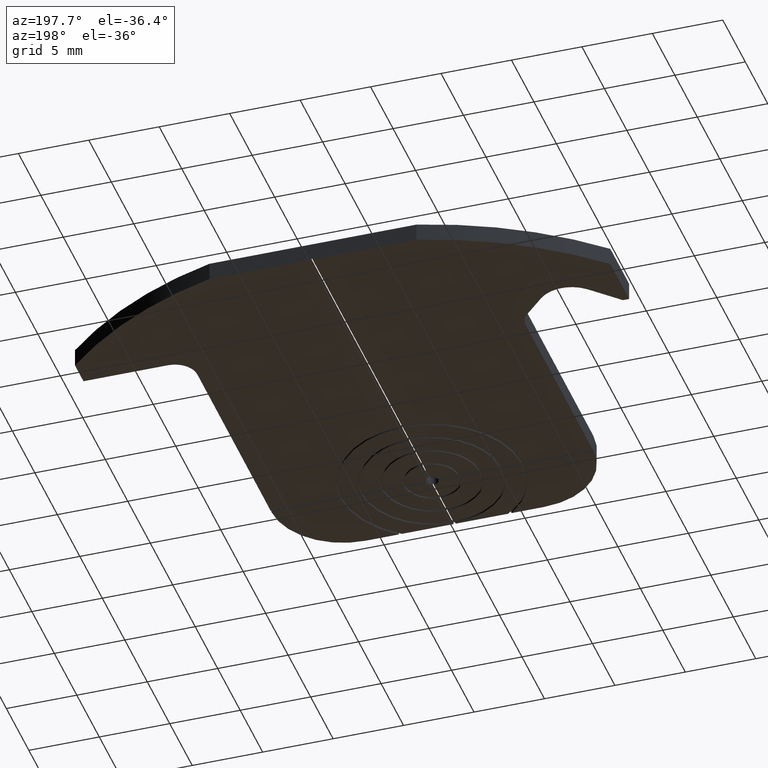
[diagram: clean part render]
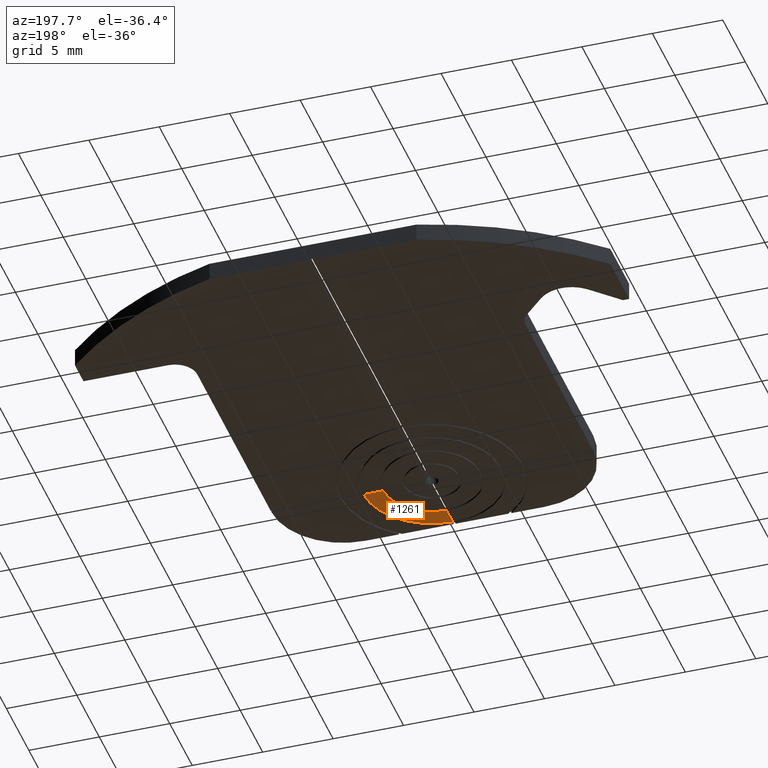
[diagram: same view with one face highlighted and labeled with its STEP entity id]
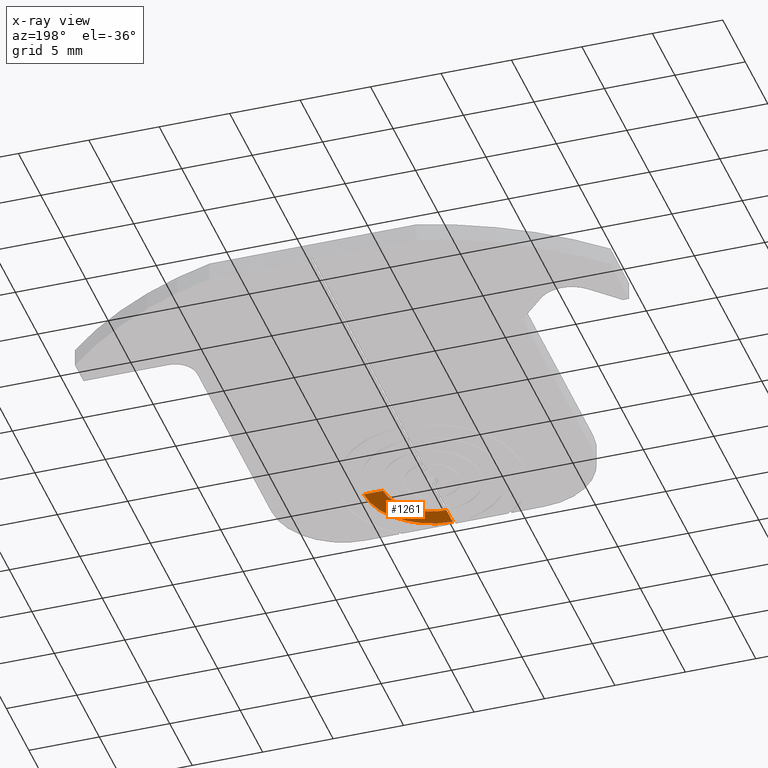
[diagram: x-ray of the same camera — body ghosted, the highlighted face saturated]
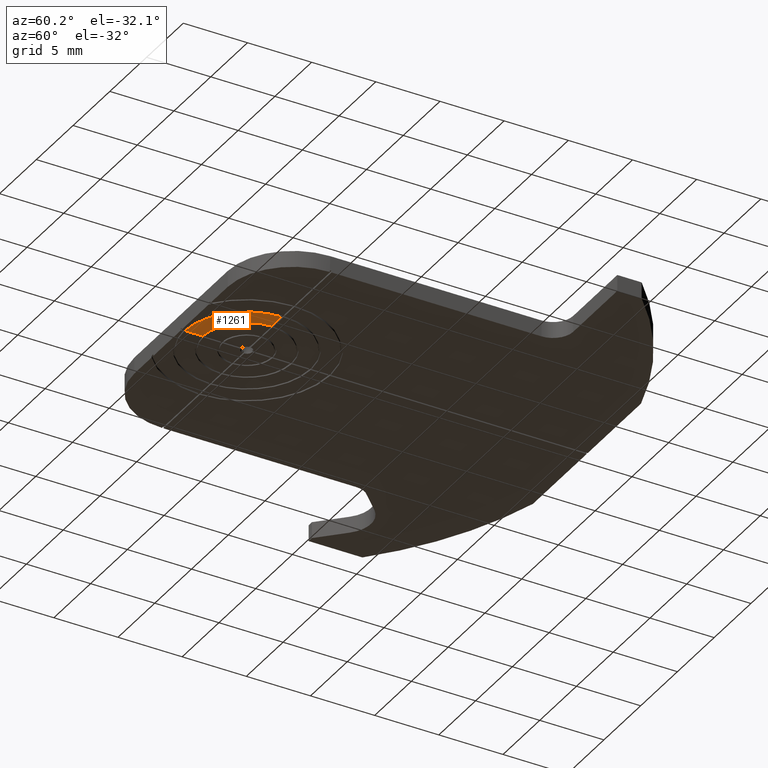
[diagram: same view with one face highlighted and labeled with its STEP entity id]
A machine part, auxiliary view. The second image highlights one B-rep face of the part: STEP entity #1261.
The next image is the same camera in x-ray: the body ghosted, the highlighted face saturated — about 0% of this face is hidden behind the body in this view.
A second angle (auxiliary view) of the same face is appended — the face is thin or edge-on in the first view.
In plain terms, the highlighted planar face has unit normal (0, 0, 1).
Its self-contained STEP definition (entity closure, byte-faithful):
#66 = VERTEX_POINT ( 'NONE', #4045 ) ;
#125 = DIRECTION ( 'NONE',  ( 1.000000000000000000, 1.184298452347989381E-16, 0.000000000000000000 ) ) ;
#156 = CARTESIAN_POINT ( 'NONE',  ( 3.499198836853284256, -0.07455534999999827162, 0.000000000000000000 ) ) ;
#174 = VECTOR ( 'NONE', #4622, 1000.000000000000000 ) ;
#419 = FACE_OUTER_BOUND ( 'NONE', #4074, .T. ) ;
#462 = EDGE_CURVE ( 'NONE', #1369, #2851, #1018, .T. ) ;
#566 = CIRCLE ( 'NONE', #1225, 3.499992999999999910 ) ;
#621 = VERTEX_POINT ( 'NONE', #792 ) ;
#792 = CARTESIAN_POINT ( 'NONE',  ( 0.08339658199999991361, -3.498999286961876010, -0.000000000000000000 ) ) ;
#857 = AXIS2_PLACEMENT_3D ( 'NONE', #3720, #4061, #4854 ) ;
#1018 = LINE ( 'NONE', #2800, #2628 ) ;
#1116 = ORIENTED_EDGE ( 'NONE', *, *, #1676, .T. ) ;
#1145 = PLANE ( 'NONE',  #2416 ) ;
#1225 = AXIS2_PLACEMENT_3D ( 'NONE', #1809, #2916, #3299 ) ;
#1261 = ADVANCED_FACE ( 'NONE', ( #419 ), #1145, .F. ) ;
#1369 = VERTEX_POINT ( 'NONE', #156 ) ;
#1390 = ORIENTED_EDGE ( 'NONE', *, *, #1709, .T. ) ;
#1527 = ORIENTED_EDGE ( 'NONE', *, *, #1853, .T. ) ;
#1676 = EDGE_CURVE ( 'NONE', #2851, #66, #4062, .T. ) ;
#1697 = LINE ( 'NONE', #2320, #174 ) ;
#1709 = EDGE_CURVE ( 'NONE', #621, #1369, #566, .T. ) ;
#1809 = CARTESIAN_POINT ( 'NONE',  ( 0.000000000000000000, 0.000000000000000000, 0.000000000000000000 ) ) ;
#1853 = EDGE_CURVE ( 'NONE', #66, #621, #1697, .T. ) ;
#1897 = CARTESIAN_POINT ( 'NONE',  ( -15.23999999999999666, 19.07355610690431647, 0.000000000000000000 ) ) ;
#2320 = CARTESIAN_POINT ( 'NONE',  ( 0.08339658199999998300, -4.872276321208672378, -0.000000000000000000 ) ) ;
#2416 = AXIS2_PLACEMENT_3D ( 'NONE', #1897, #2674, #3811 ) ;
#2628 = VECTOR ( 'NONE', #125, 1000.000000000000000 ) ;
#2674 = DIRECTION ( 'NONE',  ( 0.000000000000000000, 0.000000000000000000, 1.000000000000000000 ) ) ;
#2800 = CARTESIAN_POINT ( 'NONE',  ( 3.499198836853284256, -0.07455534999999827162, -0.000000000000000000 ) ) ;
#2851 = VERTEX_POINT ( 'NONE', #2995 ) ;
#2916 = DIRECTION ( 'NONE',  ( -0.000000000000000000, -0.000000000000000000, 1.000000000000000000 ) ) ;
#2995 = CARTESIAN_POINT ( 'NONE',  ( 4.872419628879098852, -0.07455534999999927082, 0.000000000000000000 ) ) ;
#3299 = DIRECTION ( 'NONE',  ( -1.000000000000000000, 0.000000000000000000, 0.000000000000000000 ) ) ;
#3396 = ORIENTED_EDGE ( 'NONE', *, *, #462, .T. ) ;
#3720 = CARTESIAN_POINT ( 'NONE',  ( 0.000000000000000000, 0.000000000000000000, 0.000000000000000000 ) ) ;
#3811 = DIRECTION ( 'NONE',  ( 1.000000000000000000, 0.000000000000000000, -0.000000000000000000 ) ) ;
#4045 = CARTESIAN_POINT ( 'NONE',  ( 0.08339658200000199528, -4.872276321208672378, 0.000000000000000000 ) ) ;
#4061 = DIRECTION ( 'NONE',  ( 0.000000000000000000, 0.000000000000000000, -1.000000000000000000 ) ) ;
#4062 = CIRCLE ( 'NONE', #857, 4.872989999999999711 ) ;
#4074 = EDGE_LOOP ( 'NONE', ( #1390, #3396, #1116, #1527 ) ) ;
#4622 = DIRECTION ( 'NONE',  ( -4.934374790408543939E-17, 1.000000000000000000, 0.000000000000000000 ) ) ;
#4854 = DIRECTION ( 'NONE',  ( -1.000000000000000000, 0.000000000000000000, 0.000000000000000000 ) ) ;